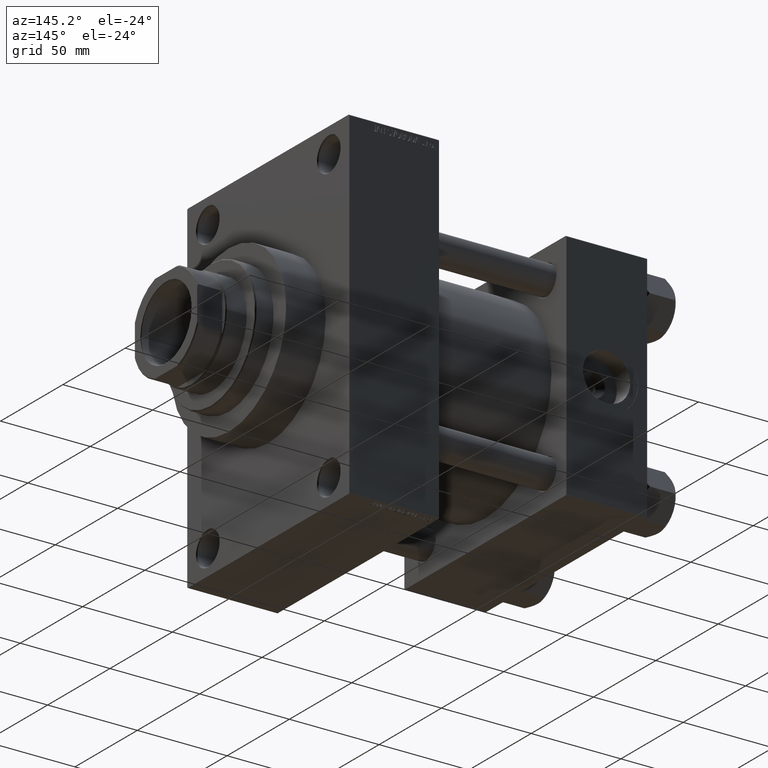
[diagram: clean part render]
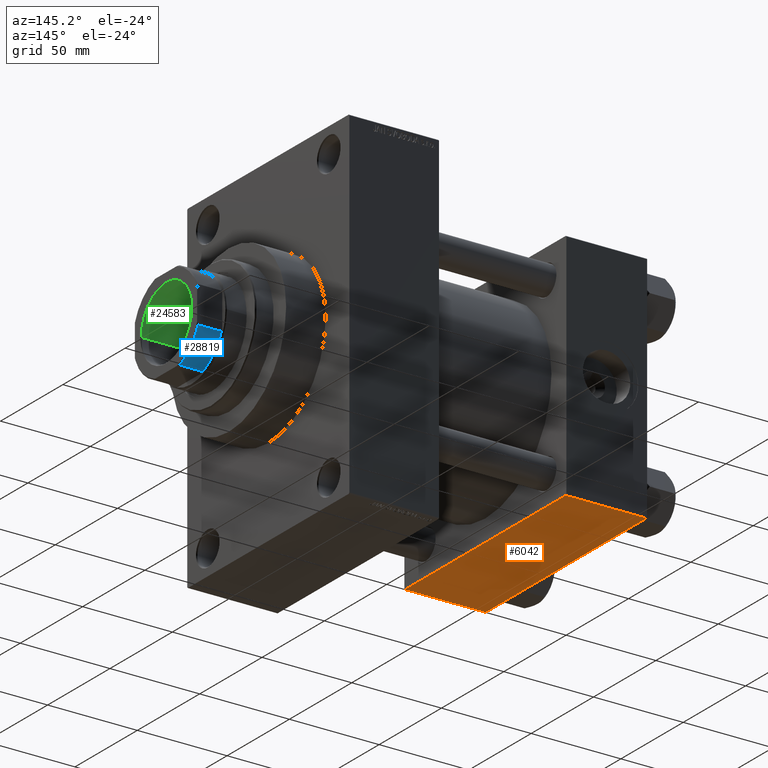
[diagram: same view with three faces highlighted in distinct colors, each labeled with its STEP entity id]
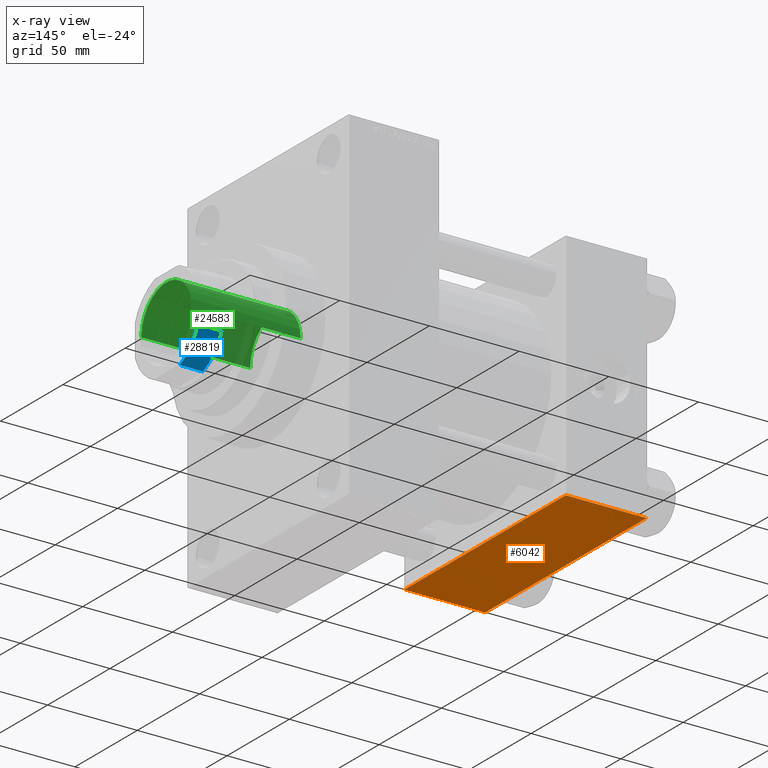
[diagram: x-ray of the same camera — body ghosted, the three highlighted faces saturated]
A machine part, auxiliary view with three faces highlighted in distinct colors.
The next image is the same camera in x-ray (body ghosted, the three faces saturated) — at least one of them is partly hidden behind the body in this view.
Their STEP definitions:

[orange] entity #6042 — the highlighted planar face has unit normal (0, 0, -1).
#3580 = FACE_OUTER_BOUND ( 'NONE', #4789, .T. ) ;
#4009 = LINE ( 'NONE', #30276, #19646 ) ;
#4789 = EDGE_LOOP ( 'NONE', ( #18024, #8988, #38296, #36839 ) ) ;
#5146 = DIRECTION ( 'NONE',  ( 1.000000000000000000, 0.000000000000000000, 0.000000000000000000 ) ) ;
#5394 = DIRECTION ( 'NONE',  ( 0.000000000000000000, -1.000000000000000000, -1.067522139062650425E-16 ) ) ;
#6042 = ADVANCED_FACE ( 'NONE', ( #3580 ), #10801, .T. ) ;
#6718 = VERTEX_POINT ( 'NONE', #27705 ) ;
#8988 = ORIENTED_EDGE ( 'NONE', *, *, #47056, .T. ) ;
#9227 = LINE ( 'NONE', #45700, #13237 ) ;
#9624 = VECTOR ( 'NONE', #5394, 1000.000000000000000 ) ;
#10536 = CARTESIAN_POINT ( 'NONE',  ( 45.00000000000000000, 64.49999999999997158, -64.99999999999998579 ) ) ;
#10801 = PLANE ( 'NONE',  #13772 ) ;
#11739 = DIRECTION ( 'NONE',  ( 0.000000000000000000, 1.067522139062650548E-16, -1.000000000000000000 ) ) ;
#13091 = CARTESIAN_POINT ( 'NONE',  ( 0.000000000000000000, -64.49999999999994316, -65.00000000000000000 ) ) ;
#13237 = VECTOR ( 'NONE', #5146, 1000.000000000000000 ) ;
#13263 = DIRECTION ( 'NONE',  ( 0.000000000000000000, -1.000000000000000000, -1.067522139062650425E-16 ) ) ;
#13613 = VERTEX_POINT ( 'NONE', #10536 ) ;
#13772 = AXIS2_PLACEMENT_3D ( 'NONE', #33246, #11739, #43884 ) ;
#16025 = EDGE_CURVE ( 'NONE', #13613, #35564, #35207, .T. ) ;
#16627 = VERTEX_POINT ( 'NONE', #13091 ) ;
#18024 = ORIENTED_EDGE ( 'NONE', *, *, #25326, .F. ) ;
#19633 = CARTESIAN_POINT ( 'NONE',  ( 0.000000000000000000, 65.00000000000000000, -64.99999999999998579 ) ) ;
#19646 = VECTOR ( 'NONE', #45027, 1000.000000000000000 ) ;
#23731 = LINE ( 'NONE', #19633, #9624 ) ;
#25326 = EDGE_CURVE ( 'NONE', #6718, #16627, #23731, .T. ) ;
#27705 = CARTESIAN_POINT ( 'NONE',  ( 0.000000000000000000, 64.49999999999997158, -64.99999999999998579 ) ) ;
#28272 = EDGE_CURVE ( 'NONE', #35564, #16627, #4009, .T. ) ;
#30276 = CARTESIAN_POINT ( 'NONE',  ( 0.000000000000000000, -64.49999999999994316, -65.00000000000000000 ) ) ;
#33246 = CARTESIAN_POINT ( 'NONE',  ( 45.00000000000000000, 65.00000000000000000, -64.99999999999998579 ) ) ;
#34147 = VECTOR ( 'NONE', #13263, 1000.000000000000000 ) ;
#35207 = LINE ( 'NONE', #46338, #34147 ) ;
#35564 = VERTEX_POINT ( 'NONE', #39072 ) ;
#36839 = ORIENTED_EDGE ( 'NONE', *, *, #28272, .T. ) ;
#38296 = ORIENTED_EDGE ( 'NONE', *, *, #16025, .T. ) ;
#39072 = CARTESIAN_POINT ( 'NONE',  ( 45.00000000000000000, -64.49999999999994316, -65.00000000000000000 ) ) ;
#43884 = DIRECTION ( 'NONE',  ( 0.000000000000000000, 1.000000000000000000, 1.067522139062650548E-16 ) ) ;
#45027 = DIRECTION ( 'NONE',  ( -1.000000000000000000, 0.000000000000000000, 0.000000000000000000 ) ) ;
#45700 = CARTESIAN_POINT ( 'NONE',  ( 45.00000000000000000, 64.49999999999997158, -64.99999999999998579 ) ) ;
#46338 = CARTESIAN_POINT ( 'NONE',  ( 45.00000000000000000, 65.00000000000000000, -64.99999999999998579 ) ) ;
#47056 = EDGE_CURVE ( 'NONE', #6718, #13613, #9227, .T. ) ;

[blue] entity #28819 — the highlighted cylindrical surface (partial cylindrical patch) has radius 27 mm, axis along (1, 0, 0).
#803 = VERTEX_POINT ( 'NONE', #11849 ) ;
#1871 = VERTEX_POINT ( 'NONE', #47108 ) ;
#4126 = FACE_OUTER_BOUND ( 'NONE', #12171, .T. ) ;
#5124 = CIRCLE ( 'NONE', #45211, 26.99999999999999645 ) ;
#5845 = VECTOR ( 'NONE', #44587, 1000.000000000000000 ) ;
#6404 = CARTESIAN_POINT ( 'NONE',  ( -10.19803902718555655, 25.00000000000000000, 177.5000000000000000 ) ) ;
#6741 = EDGE_CURVE ( 'NONE', #803, #1871, #31538, .T. ) ;
#7510 = DIRECTION ( 'NONE',  ( 1.000000000000000000, 0.000000000000000000, 0.000000000000000000 ) ) ;
#11849 = CARTESIAN_POINT ( 'NONE',  ( -10.19803902718555300, 25.00000000000000000, 164.5000000000000000 ) ) ;
#11881 = VERTEX_POINT ( 'NONE', #6404 ) ;
#12171 = EDGE_LOOP ( 'NONE', ( #46491, #35144, #39647, #43493 ) ) ;
#14528 = DIRECTION ( 'NONE',  ( -0.000000000000000000, -0.000000000000000000, 1.000000000000000000 ) ) ;
#18148 = CARTESIAN_POINT ( 'NONE',  ( -10.19803902718555655, 25.00000000000000000, -0.001000000000001000089 ) ) ;
#18281 = LINE ( 'NONE', #22835, #5845 ) ;
#18637 = LINE ( 'NONE', #18148, #21696 ) ;
#18841 = CYLINDRICAL_SURFACE ( 'NONE', #47458, 26.99999999999999645 ) ;
#19997 = DIRECTION ( 'NONE',  ( -0.000000000000000000, -0.000000000000000000, 1.000000000000000000 ) ) ;
#21696 = VECTOR ( 'NONE', #14528, 1000.000000000000000 ) ;
#21997 = DIRECTION ( 'NONE',  ( -0.000000000000000000, -0.000000000000000000, 1.000000000000000000 ) ) ;
#22835 = CARTESIAN_POINT ( 'NONE',  ( -25.00000000000000000, 10.19803902718555655, -0.001000000000001000089 ) ) ;
#24889 = VERTEX_POINT ( 'NONE', #44135 ) ;
#27067 = CARTESIAN_POINT ( 'NONE',  ( 0.000000000000000000, 0.000000000000000000, 177.5000000000000000 ) ) ;
#27810 = EDGE_CURVE ( 'NONE', #24889, #11881, #5124, .T. ) ;
#28819 = ADVANCED_FACE ( 'NONE', ( #4126 ), #18841, .T. ) ;
#29911 = EDGE_CURVE ( 'NONE', #1871, #24889, #18281, .T. ) ;
#30169 = CARTESIAN_POINT ( 'NONE',  ( 0.000000000000000000, 0.000000000000000000, -0.001000000000001000089 ) ) ;
#31538 = CIRCLE ( 'NONE', #46197, 26.99999999999999645 ) ;
#35144 = ORIENTED_EDGE ( 'NONE', *, *, #27810, .T. ) ;
#35974 = DIRECTION ( 'NONE',  ( 1.000000000000000000, 0.000000000000000000, 0.000000000000000000 ) ) ;
#38807 = CARTESIAN_POINT ( 'NONE',  ( 0.000000000000000000, 0.000000000000000000, 164.5000000000000000 ) ) ;
#39647 = ORIENTED_EDGE ( 'NONE', *, *, #46328, .F. ) ;
#43235 = DIRECTION ( 'NONE',  ( -0.000000000000000000, -0.000000000000000000, -1.000000000000000000 ) ) ;
#43493 = ORIENTED_EDGE ( 'NONE', *, *, #6741, .T. ) ;
#44135 = CARTESIAN_POINT ( 'NONE',  ( -25.00000000000000000, 10.19803902718555655, 177.5000000000000000 ) ) ;
#44587 = DIRECTION ( 'NONE',  ( -0.000000000000000000, -0.000000000000000000, 1.000000000000000000 ) ) ;
#45211 = AXIS2_PLACEMENT_3D ( 'NONE', #27067, #43235, #35974 ) ;
#45609 = DIRECTION ( 'NONE',  ( -1.000000000000000000, 2.664535259100375697E-15, 0.000000000000000000 ) ) ;
#46197 = AXIS2_PLACEMENT_3D ( 'NONE', #38807, #19997, #45609 ) ;
#46328 = EDGE_CURVE ( 'NONE', #803, #11881, #18637, .T. ) ;
#46491 = ORIENTED_EDGE ( 'NONE', *, *, #29911, .T. ) ;
#47108 = CARTESIAN_POINT ( 'NONE',  ( -25.00000000000000000, 10.19803902718555122, 164.5000000000000000 ) ) ;
#47458 = AXIS2_PLACEMENT_3D ( 'NONE', #30169, #21997, #7510 ) ;

[green] entity #24583 — the highlighted cylindrical surface (partial cylindrical patch) has radius 20.25 mm, axis along (1, 0, 0).
#198 = DIRECTION ( 'NONE',  ( -0.000000000000000000, -0.000000000000000000, 1.000000000000000000 ) ) ;
#663 = VERTEX_POINT ( 'NONE', #23474 ) ;
#6350 = CYLINDRICAL_SURFACE ( 'NONE', #7341, 20.24999999999999289 ) ;
#6955 = DIRECTION ( 'NONE',  ( -0.000000000000000000, -0.000000000000000000, 1.000000000000000000 ) ) ;
#7341 = AXIS2_PLACEMENT_3D ( 'NONE', #9004, #35779, #42312 ) ;
#9004 = CARTESIAN_POINT ( 'NONE',  ( 0.000000000000000000, 0.000000000000000000, 178.0000000000000284 ) ) ;
#9621 = EDGE_LOOP ( 'NONE', ( #29124, #20821, #46881, #13200 ) ) ;
#10749 = EDGE_CURVE ( 'NONE', #19605, #663, #11733, .T. ) ;
#11050 = CARTESIAN_POINT ( 'NONE',  ( 0.000000000000000000, 0.000000000000000000, 117.0000000000000142 ) ) ;
#11733 = LINE ( 'NONE', #15365, #18544 ) ;
#13200 = ORIENTED_EDGE ( 'NONE', *, *, #10749, .F. ) ;
#13856 = VERTEX_POINT ( 'NONE', #19201 ) ;
#14047 = DIRECTION ( 'NONE',  ( 0.000000000000000000, 0.000000000000000000, 1.000000000000000000 ) ) ;
#14407 = CIRCLE ( 'NONE', #19040, 20.24999999999998934 ) ;
#14873 = VERTEX_POINT ( 'NONE', #21103 ) ;
#15365 = CARTESIAN_POINT ( 'NONE',  ( 20.24999999999999289, 0.000000000000000000, 178.0000000000000284 ) ) ;
#15764 = EDGE_CURVE ( 'NONE', #13856, #663, #25670, .T. ) ;
#18385 = DIRECTION ( 'NONE',  ( 1.000000000000000000, 0.000000000000000000, 0.000000000000000000 ) ) ;
#18544 = VECTOR ( 'NONE', #26226, 1000.000000000000000 ) ;
#19040 = AXIS2_PLACEMENT_3D ( 'NONE', #11050, #6955, #21681 ) ;
#19201 = CARTESIAN_POINT ( 'NONE',  ( -20.24999999999999289, 2.479909768273389511E-15, 177.7000000000000171 ) ) ;
#19605 = VERTEX_POINT ( 'NONE', #27431 ) ;
#20821 = ORIENTED_EDGE ( 'NONE', *, *, #24250, .T. ) ;
#21103 = CARTESIAN_POINT ( 'NONE',  ( -20.24999999999998934, 2.479909768273389117E-15, 117.0000000000000142 ) ) ;
#21670 = LINE ( 'NONE', #37321, #33554 ) ;
#21681 = DIRECTION ( 'NONE',  ( 1.000000000000000000, 0.000000000000000000, 0.000000000000000000 ) ) ;
#23474 = CARTESIAN_POINT ( 'NONE',  ( 20.24999999999999289, 0.000000000000000000, 177.7000000000000171 ) ) ;
#24250 = EDGE_CURVE ( 'NONE', #14873, #13856, #21670, .T. ) ;
#24583 = ADVANCED_FACE ( 'NONE', ( #38919 ), #6350, .F. ) ;
#25670 = CIRCLE ( 'NONE', #30262, 20.24999999999999289 ) ;
#26226 = DIRECTION ( 'NONE',  ( -0.000000000000000000, -0.000000000000000000, 1.000000000000000000 ) ) ;
#27431 = CARTESIAN_POINT ( 'NONE',  ( 20.24999999999998934, 0.000000000000000000, 117.0000000000000142 ) ) ;
#29124 = ORIENTED_EDGE ( 'NONE', *, *, #31945, .F. ) ;
#30262 = AXIS2_PLACEMENT_3D ( 'NONE', #47126, #14047, #18385 ) ;
#31945 = EDGE_CURVE ( 'NONE', #14873, #19605, #14407, .T. ) ;
#33554 = VECTOR ( 'NONE', #198, 1000.000000000000000 ) ;
#35779 = DIRECTION ( 'NONE',  ( -0.000000000000000000, -0.000000000000000000, 1.000000000000000000 ) ) ;
#37321 = CARTESIAN_POINT ( 'NONE',  ( -20.24999999999999289, 2.479909768273389511E-15, 178.0000000000000284 ) ) ;
#38919 = FACE_OUTER_BOUND ( 'NONE', #9621, .T. ) ;
#42312 = DIRECTION ( 'NONE',  ( 1.000000000000000000, 0.000000000000000000, 0.000000000000000000 ) ) ;
#46881 = ORIENTED_EDGE ( 'NONE', *, *, #15764, .T. ) ;
#47126 = CARTESIAN_POINT ( 'NONE',  ( 0.000000000000000000, 0.000000000000000000, 177.7000000000000171 ) ) ;